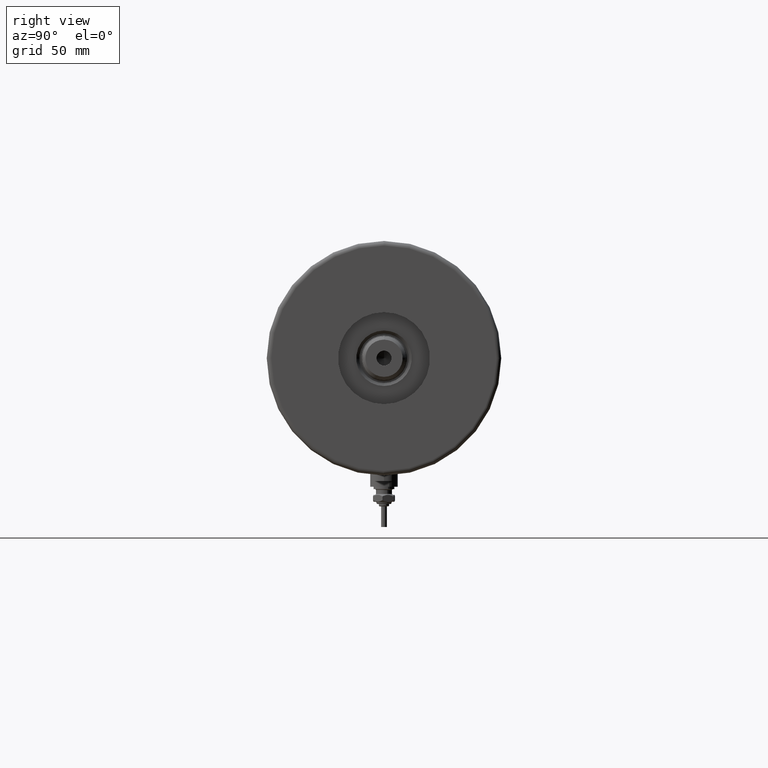
[diagram: clean part render]
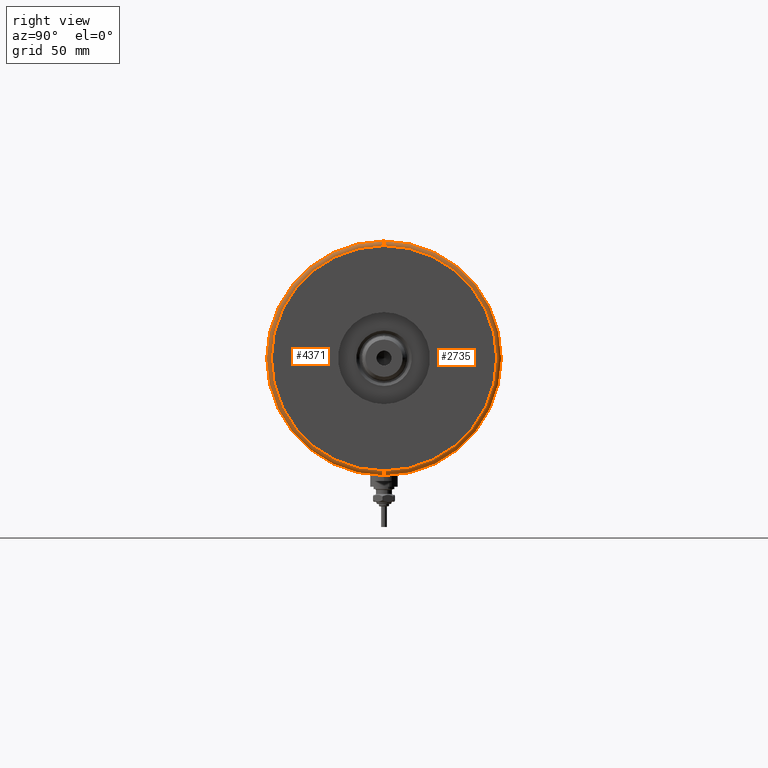
[diagram: same view with one multi-face feature highlighted, each face labeled with its STEP entity id]
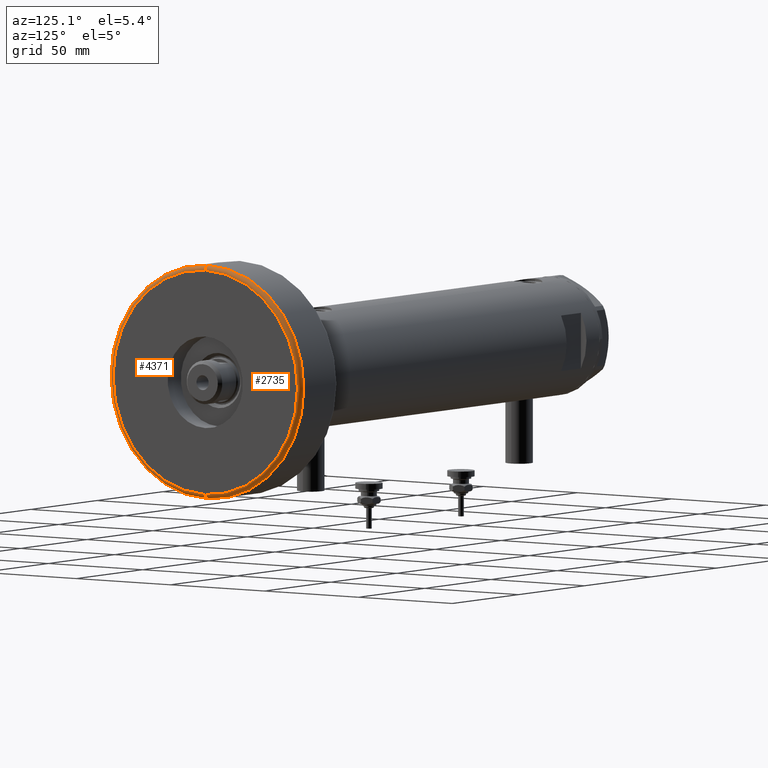
[diagram: same view with one multi-face feature highlighted, each face labeled with its STEP entity id]
A machine part, right view. The highlighted faces form ONE feature: a constant-radius fillet chain: 2 tangent blend faces with common blend radius 2 mm. The faces share edges in the B-rep.
A second angle (auxiliary view) of the same feature is appended — it is thin or edge-on in the first view.
Their STEP definitions:
[1] entity #4371 (Torus):
#199 = VERTEX_POINT ( 'NONE', #494 ) ;
#301 = DIRECTION ( 'NONE',  ( 0.000000000000000000, 0.000000000000000000, -1.000000000000000000 ) ) ;
#466 = DIRECTION ( 'NONE',  ( -0.000000000000000000, -0.000000000000000000, -1.000000000000000000 ) ) ;
#494 = CARTESIAN_POINT ( 'NONE',  ( 48.99999999999998579, 0.000000000000000000, 28.00000000000000000 ) ) ;
#533 = EDGE_CURVE ( 'NONE', #5431, #5216, #4423, .T. ) ;
#689 = CARTESIAN_POINT ( 'NONE',  ( 50.99999999999999289, 6.245698675651499656E-15, 26.00000000000000355 ) ) ;
#723 = ORIENTED_EDGE ( 'NONE', *, *, #1489, .F. ) ;
#783 = EDGE_LOOP ( 'NONE', ( #5853, #1184, #3785, #723 ) ) ;
#867 = CIRCLE ( 'NONE', #4974, 48.99999999999998579 ) ;
#1184 = ORIENTED_EDGE ( 'NONE', *, *, #4679, .F. ) ;
#1340 = DIRECTION ( 'NONE',  ( 1.000000000000000000, 0.000000000000000000, 0.000000000000000000 ) ) ;
#1444 = CIRCLE ( 'NONE', #2831, 2.000000000000001776 ) ;
#1489 = EDGE_CURVE ( 'NONE', #5216, #199, #867, .T. ) ;
#1663 = CIRCLE ( 'NONE', #2947, 50.99999999999999289 ) ;
#1765 = CARTESIAN_POINT ( 'NONE',  ( -48.99999999999998579, 6.123233995736764507E-15, 28.00000000000000000 ) ) ;
#1841 = DIRECTION ( 'NONE',  ( 0.000000000000000000, 0.000000000000000000, 1.000000000000000000 ) ) ;
#2277 = CARTESIAN_POINT ( 'NONE',  ( 0.000000000000000000, 0.000000000000000000, 26.00000000000000355 ) ) ;
#2487 = CARTESIAN_POINT ( 'NONE',  ( -48.99999999999998579, 6.000769315822029359E-15, 26.00000000000000355 ) ) ;
#2831 = AXIS2_PLACEMENT_3D ( 'NONE', #6465, #3765, #301 ) ;
#2947 = AXIS2_PLACEMENT_3D ( 'NONE', #4174, #466, #4604 ) ;
#3262 = FACE_OUTER_BOUND ( 'NONE', #783, .T. ) ;
#3268 = TOROIDAL_SURFACE ( 'NONE', #3916, 48.99999999999998579, 2.000000000000000000 ) ;
#3765 = DIRECTION ( 'NONE',  ( 0.000000000000000000, -1.000000000000000000, 0.000000000000000000 ) ) ;
#3785 = ORIENTED_EDGE ( 'NONE', *, *, #4373, .T. ) ;
#3916 = AXIS2_PLACEMENT_3D ( 'NONE', #2277, #1841, #1340 ) ;
#3994 = CARTESIAN_POINT ( 'NONE',  ( -50.99999999999999289, 0.000000000000000000, 26.00000000000000355 ) ) ;
#4035 = CARTESIAN_POINT ( 'NONE',  ( 0.000000000000000000, 0.000000000000000000, 28.00000000000000000 ) ) ;
#4174 = CARTESIAN_POINT ( 'NONE',  ( 0.000000000000000000, 0.000000000000000000, 26.00000000000000355 ) ) ;
#4371 = ADVANCED_FACE ( 'NONE', ( #3262 ), #3268, .T. ) ;
#4373 = EDGE_CURVE ( 'NONE', #4837, #199, #1444, .T. ) ;
#4423 = CIRCLE ( 'NONE', #5391, 2.000000000000001776 ) ;
#4563 = DIRECTION ( 'NONE',  ( 1.224646799147353207E-16, 1.000000000000000000, -0.000000000000000000 ) ) ;
#4604 = DIRECTION ( 'NONE',  ( 1.000000000000000000, 0.000000000000000000, 0.000000000000000000 ) ) ;
#4679 = EDGE_CURVE ( 'NONE', #4837, #5431, #1663, .T. ) ;
#4837 = VERTEX_POINT ( 'NONE', #689 ) ;
#4974 = AXIS2_PLACEMENT_3D ( 'NONE', #4035, #6694, #5615 ) ;
#5216 = VERTEX_POINT ( 'NONE', #1765 ) ;
#5391 = AXIS2_PLACEMENT_3D ( 'NONE', #2487, #4563, #6631 ) ;
#5431 = VERTEX_POINT ( 'NONE', #3994 ) ;
#5615 = DIRECTION ( 'NONE',  ( 1.000000000000000000, 0.000000000000000000, 0.000000000000000000 ) ) ;
#5853 = ORIENTED_EDGE ( 'NONE', *, *, #533, .F. ) ;
#6465 = CARTESIAN_POINT ( 'NONE',  ( 48.99999999999998579, 0.000000000000000000, 26.00000000000000355 ) ) ;
#6631 = DIRECTION ( 'NONE',  ( -1.000000000000000000, 1.224646799147353454E-16, 0.000000000000000000 ) ) ;
#6694 = DIRECTION ( 'NONE',  ( 0.000000000000000000, 0.000000000000000000, 1.000000000000000000 ) ) ;
[2] entity #2735 (Torus):
#199 = VERTEX_POINT ( 'NONE', #494 ) ;
#240 = TOROIDAL_SURFACE ( 'NONE', #1972, 48.99999999999998579, 2.000000000000000000 ) ;
#280 = DIRECTION ( 'NONE',  ( 0.000000000000000000, 0.000000000000000000, 1.000000000000000000 ) ) ;
#301 = DIRECTION ( 'NONE',  ( 0.000000000000000000, 0.000000000000000000, -1.000000000000000000 ) ) ;
#494 = CARTESIAN_POINT ( 'NONE',  ( 48.99999999999998579, 0.000000000000000000, 28.00000000000000000 ) ) ;
#533 = EDGE_CURVE ( 'NONE', #5431, #5216, #4423, .T. ) ;
#689 = CARTESIAN_POINT ( 'NONE',  ( 50.99999999999999289, 6.245698675651499656E-15, 26.00000000000000355 ) ) ;
#1212 = DIRECTION ( 'NONE',  ( 1.000000000000000000, 0.000000000000000000, 0.000000000000000000 ) ) ;
#1444 = CIRCLE ( 'NONE', #2831, 2.000000000000001776 ) ;
#1543 = CIRCLE ( 'NONE', #2285, 48.99999999999998579 ) ;
#1765 = CARTESIAN_POINT ( 'NONE',  ( -48.99999999999998579, 6.123233995736764507E-15, 28.00000000000000000 ) ) ;
#1972 = AXIS2_PLACEMENT_3D ( 'NONE', #5932, #5859, #1212 ) ;
#2285 = AXIS2_PLACEMENT_3D ( 'NONE', #3848, #280, #5523 ) ;
#2487 = CARTESIAN_POINT ( 'NONE',  ( -48.99999999999998579, 6.000769315822029359E-15, 26.00000000000000355 ) ) ;
#2735 = ADVANCED_FACE ( 'NONE', ( #3769 ), #240, .T. ) ;
#2831 = AXIS2_PLACEMENT_3D ( 'NONE', #6465, #3765, #301 ) ;
#2858 = EDGE_CURVE ( 'NONE', #5431, #4837, #5312, .T. ) ;
#2993 = ORIENTED_EDGE ( 'NONE', *, *, #2858, .F. ) ;
#3227 = CARTESIAN_POINT ( 'NONE',  ( 0.000000000000000000, 0.000000000000000000, 26.00000000000000355 ) ) ;
#3530 = EDGE_CURVE ( 'NONE', #199, #5216, #1543, .T. ) ;
#3697 = DIRECTION ( 'NONE',  ( 1.000000000000000000, 0.000000000000000000, 0.000000000000000000 ) ) ;
#3765 = DIRECTION ( 'NONE',  ( 0.000000000000000000, -1.000000000000000000, 0.000000000000000000 ) ) ;
#3769 = FACE_OUTER_BOUND ( 'NONE', #3959, .T. ) ;
#3848 = CARTESIAN_POINT ( 'NONE',  ( 0.000000000000000000, 0.000000000000000000, 28.00000000000000000 ) ) ;
#3904 = AXIS2_PLACEMENT_3D ( 'NONE', #3227, #4734, #3697 ) ;
#3959 = EDGE_LOOP ( 'NONE', ( #2993, #4748, #5987, #6342 ) ) ;
#3994 = CARTESIAN_POINT ( 'NONE',  ( -50.99999999999999289, 0.000000000000000000, 26.00000000000000355 ) ) ;
#4373 = EDGE_CURVE ( 'NONE', #4837, #199, #1444, .T. ) ;
#4423 = CIRCLE ( 'NONE', #5391, 2.000000000000001776 ) ;
#4563 = DIRECTION ( 'NONE',  ( 1.224646799147353207E-16, 1.000000000000000000, -0.000000000000000000 ) ) ;
#4734 = DIRECTION ( 'NONE',  ( -0.000000000000000000, -0.000000000000000000, -1.000000000000000000 ) ) ;
#4748 = ORIENTED_EDGE ( 'NONE', *, *, #533, .T. ) ;
#4837 = VERTEX_POINT ( 'NONE', #689 ) ;
#5216 = VERTEX_POINT ( 'NONE', #1765 ) ;
#5312 = CIRCLE ( 'NONE', #3904, 50.99999999999999289 ) ;
#5391 = AXIS2_PLACEMENT_3D ( 'NONE', #2487, #4563, #6631 ) ;
#5431 = VERTEX_POINT ( 'NONE', #3994 ) ;
#5523 = DIRECTION ( 'NONE',  ( 1.000000000000000000, 0.000000000000000000, 0.000000000000000000 ) ) ;
#5859 = DIRECTION ( 'NONE',  ( 0.000000000000000000, 0.000000000000000000, 1.000000000000000000 ) ) ;
#5932 = CARTESIAN_POINT ( 'NONE',  ( 0.000000000000000000, 0.000000000000000000, 26.00000000000000355 ) ) ;
#5987 = ORIENTED_EDGE ( 'NONE', *, *, #3530, .F. ) ;
#6342 = ORIENTED_EDGE ( 'NONE', *, *, #4373, .F. ) ;
#6465 = CARTESIAN_POINT ( 'NONE',  ( 48.99999999999998579, 0.000000000000000000, 26.00000000000000355 ) ) ;
#6631 = DIRECTION ( 'NONE',  ( -1.000000000000000000, 1.224646799147353454E-16, 0.000000000000000000 ) ) ;